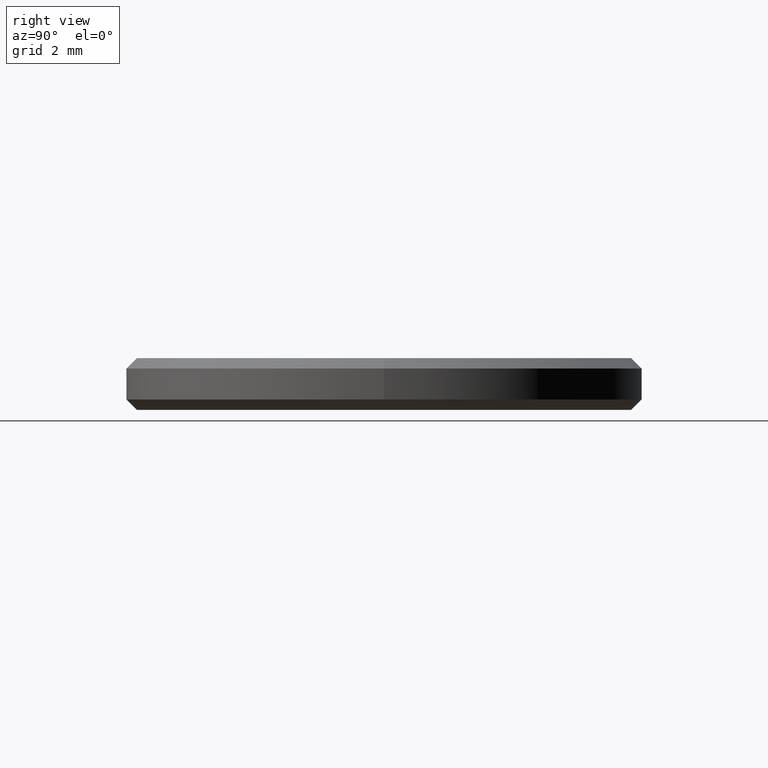
[diagram: clean part render]
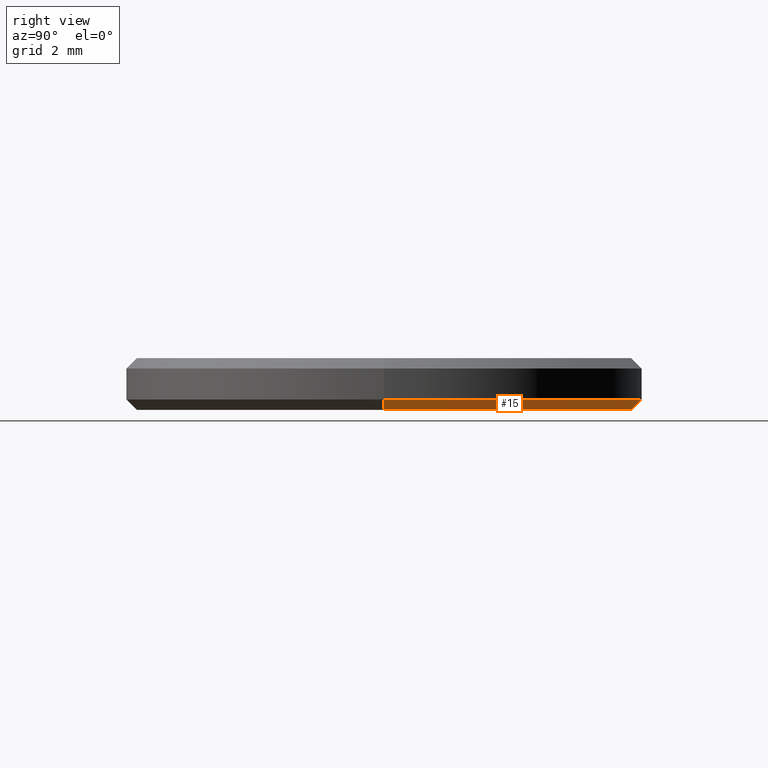
[diagram: same view with one face highlighted and labeled with its STEP entity id]
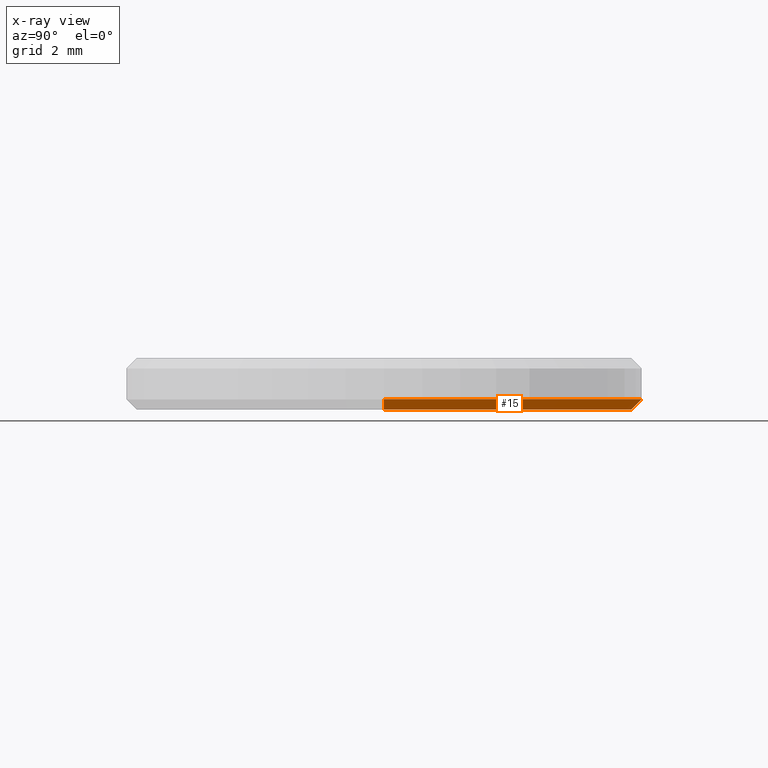
[diagram: x-ray of the same camera — body ghosted, the highlighted face saturated]
A machine part, right view. The second image highlights one B-rep face of the part: STEP entity #15.
The next image is the same camera in x-ray: the body ghosted, the highlighted face saturated — about 0% of this face is hidden behind the body in this view.
In plain terms, the highlighted conical surface has half-angle 45 deg.
Its self-contained STEP definition (entity closure, byte-faithful):
#5 = DIRECTION ( 'NONE',  ( 0.7071067811865490160, 0.000000000000000000, 0.7071067811865459074 ) ) ;
#12 = DIRECTION ( 'NONE',  ( -0.7071067811865490160, 8.659560562354950115E-17, 0.7071067811865459074 ) ) ;
#15 = ADVANCED_FACE ( 'NONE', ( #116 ), #16, .T. ) ;
#16 = CONICAL_SURFACE ( 'NONE', #155, 5.000000000000000000, 0.7853981633974503884 ) ;
#29 = DIRECTION ( 'NONE',  ( 1.000000000000000000, 0.000000000000000000, 0.000000000000000000 ) ) ;
#31 = DIRECTION ( 'NONE',  ( -0.000000000000000000, -0.000000000000000000, 1.000000000000000000 ) ) ;
#39 = AXIS2_PLACEMENT_3D ( 'NONE', #153, #150, #173 ) ;
#43 = CARTESIAN_POINT ( 'NONE',  ( 0.000000000000000000, 0.000000000000000000, 0.1999999999999996503 ) ) ;
#44 = VECTOR ( 'NONE', #5, 1000.000000000000000 ) ;
#49 = CARTESIAN_POINT ( 'NONE',  ( -4.799999999999999822, 6.000769315822029754E-16, 0.000000000000000000 ) ) ;
#59 = DIRECTION ( 'NONE',  ( -0.000000000000000000, -0.000000000000000000, 1.000000000000000000 ) ) ;
#63 = EDGE_CURVE ( 'NONE', #145, #128, #101, .T. ) ;
#67 = LINE ( 'NONE', #232, #148 ) ;
#71 = CARTESIAN_POINT ( 'NONE',  ( -5.000000000000000000, 0.000000000000000000, 0.1999999999999996503 ) ) ;
#80 = CIRCLE ( 'NONE', #207, 5.000000000000000000 ) ;
#90 = CARTESIAN_POINT ( 'NONE',  ( 4.799999999999999822, 0.000000000000000000, 0.000000000000000000 ) ) ;
#97 = EDGE_CURVE ( 'NONE', #163, #145, #177, .T. ) ;
#101 = LINE ( 'NONE', #118, #44 ) ;
#110 = ORIENTED_EDGE ( 'NONE', *, *, #138, .T. ) ;
#112 = ORIENTED_EDGE ( 'NONE', *, *, #63, .F. ) ;
#116 = FACE_OUTER_BOUND ( 'NONE', #144, .T. ) ;
#118 = CARTESIAN_POINT ( 'NONE',  ( 5.000000000000000000, 0.000000000000000000, 0.1999999999999996503 ) ) ;
#121 = EDGE_CURVE ( 'NONE', #128, #201, #80, .T. ) ;
#128 = VERTEX_POINT ( 'NONE', #211 ) ;
#133 = DIRECTION ( 'NONE',  ( 1.000000000000000000, 0.000000000000000000, 0.000000000000000000 ) ) ;
#138 = EDGE_CURVE ( 'NONE', #163, #201, #67, .T. ) ;
#141 = ORIENTED_EDGE ( 'NONE', *, *, #97, .F. ) ;
#144 = EDGE_LOOP ( 'NONE', ( #141, #110, #147, #112 ) ) ;
#145 = VERTEX_POINT ( 'NONE', #90 ) ;
#147 = ORIENTED_EDGE ( 'NONE', *, *, #121, .F. ) ;
#148 = VECTOR ( 'NONE', #12, 1000.000000000000000 ) ;
#150 = DIRECTION ( 'NONE',  ( -0.000000000000000000, -0.000000000000000000, -1.000000000000000000 ) ) ;
#153 = CARTESIAN_POINT ( 'NONE',  ( 0.000000000000000000, 0.000000000000000000, 0.000000000000000000 ) ) ;
#155 = AXIS2_PLACEMENT_3D ( 'NONE', #43, #59, #133 ) ;
#163 = VERTEX_POINT ( 'NONE', #49 ) ;
#173 = DIRECTION ( 'NONE',  ( 1.000000000000000000, 0.000000000000000000, 0.000000000000000000 ) ) ;
#177 = CIRCLE ( 'NONE', #39, 4.799999999999999822 ) ;
#185 = CARTESIAN_POINT ( 'NONE',  ( 0.000000000000000000, 0.000000000000000000, 0.1999999999999996503 ) ) ;
#201 = VERTEX_POINT ( 'NONE', #71 ) ;
#207 = AXIS2_PLACEMENT_3D ( 'NONE', #185, #31, #29 ) ;
#211 = CARTESIAN_POINT ( 'NONE',  ( 5.000000000000000000, 6.123233995736766282E-16, 0.1999999999999996503 ) ) ;
#232 = CARTESIAN_POINT ( 'NONE',  ( -5.000000000000000000, 6.123233995736765296E-16, 0.1999999999999996503 ) ) ;